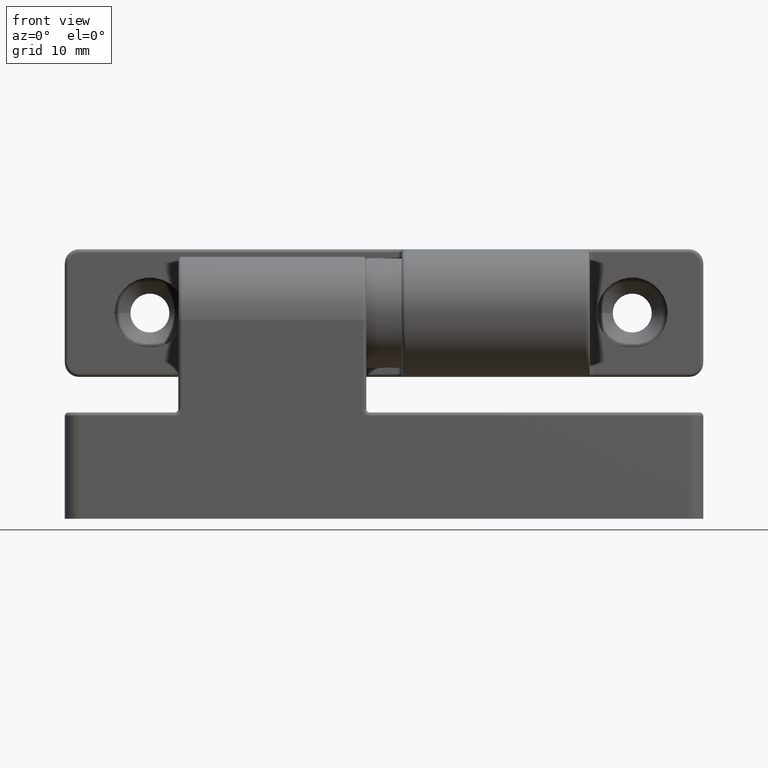
[diagram: clean part render]
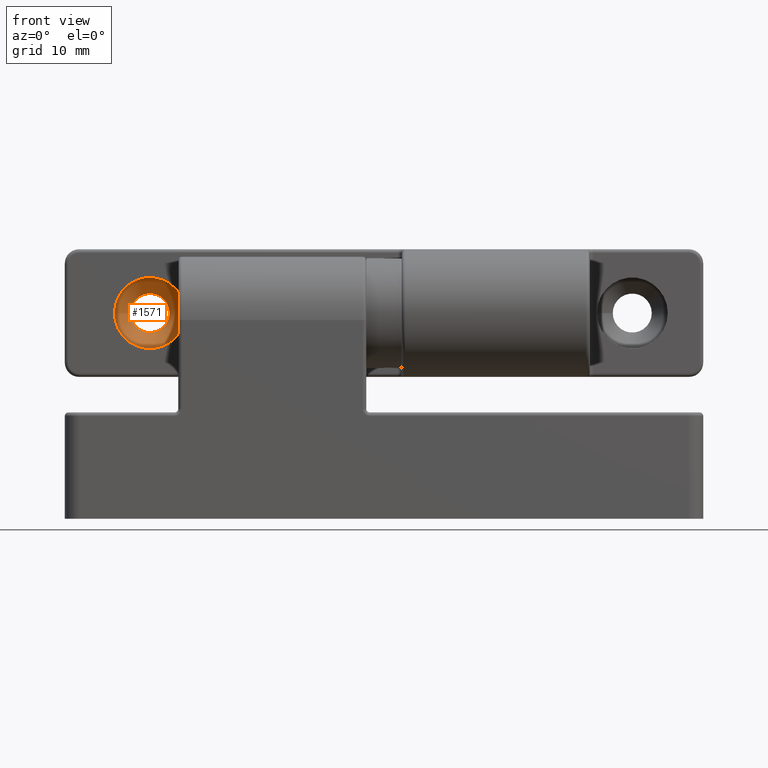
[diagram: same view with one face highlighted and labeled with its STEP entity id]
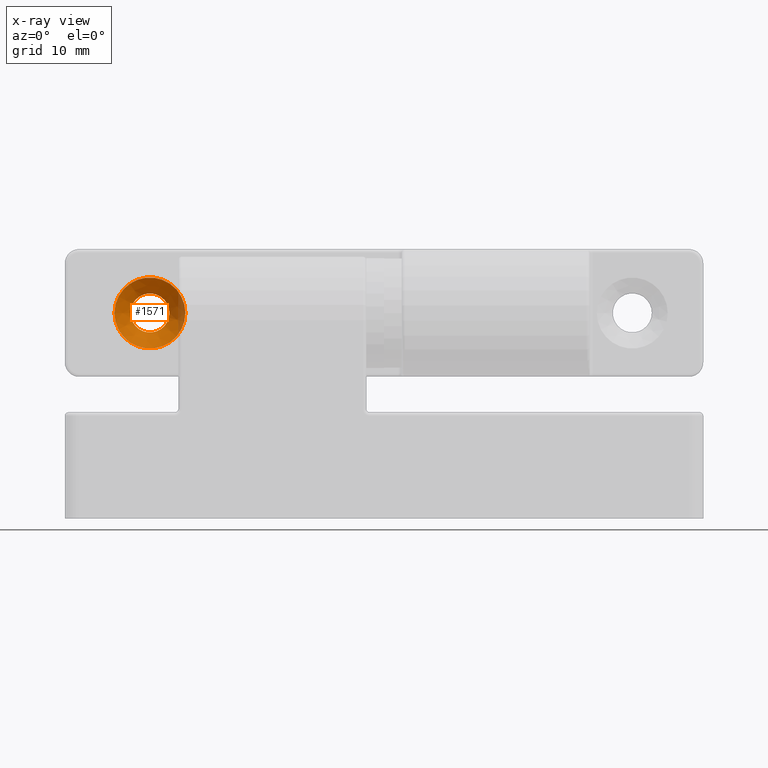
[diagram: x-ray of the same camera — body ghosted, the highlighted face saturated]
A machine part, front view. The second image highlights one B-rep face of the part: STEP entity #1571.
The next image is the same camera in x-ray: the body ghosted, the highlighted face saturated — about 7% of this face is hidden behind the body in this view.
In plain terms, the highlighted conical surface has half-angle 45 deg.
Its self-contained STEP definition (entity closure, byte-faithful):
#46=CONICAL_SURFACE('',#1805,3.875,45.);
#79=FACE_BOUND('',#556,.T.);
#416=FACE_OUTER_BOUND('',#555,.T.);
#555=EDGE_LOOP('',(#1415));
#556=EDGE_LOOP('',(#1416));
#701=CIRCLE('',#1806,5.);
#702=CIRCLE('',#1807,2.75);
#837=VERTEX_POINT('',#2808);
#838=VERTEX_POINT('',#2810);
#1038=EDGE_CURVE('',#837,#837,#701,.T.);
#1039=EDGE_CURVE('',#838,#838,#702,.T.);
#1415=ORIENTED_EDGE('',*,*,#1038,.T.);
#1416=ORIENTED_EDGE('',*,*,#1039,.F.);
#1571=ADVANCED_FACE('',(#416,#79),#46,.F.);
#1805=AXIS2_PLACEMENT_3D('',#2807,#2335,#2336);
#1806=AXIS2_PLACEMENT_3D('',#2809,#2337,#2338);
#1807=AXIS2_PLACEMENT_3D('',#2811,#2339,#2340);
#2335=DIRECTION('center_axis',(0.,0.,1.));
#2336=DIRECTION('ref_axis',(1.,0.,0.));
#2337=DIRECTION('center_axis',(0.,0.,1.));
#2338=DIRECTION('ref_axis',(1.,0.,0.));
#2339=DIRECTION('center_axis',(0.,0.,1.));
#2340=DIRECTION('ref_axis',(1.,0.,0.));
#2807=CARTESIAN_POINT('Origin',(33.,0.,3.375));
#2808=CARTESIAN_POINT('',(38.,0.,4.5));
#2809=CARTESIAN_POINT('Origin',(33.,0.,4.5));
#2810=CARTESIAN_POINT('',(35.75,0.,2.25));
#2811=CARTESIAN_POINT('Origin',(33.,0.,2.25));